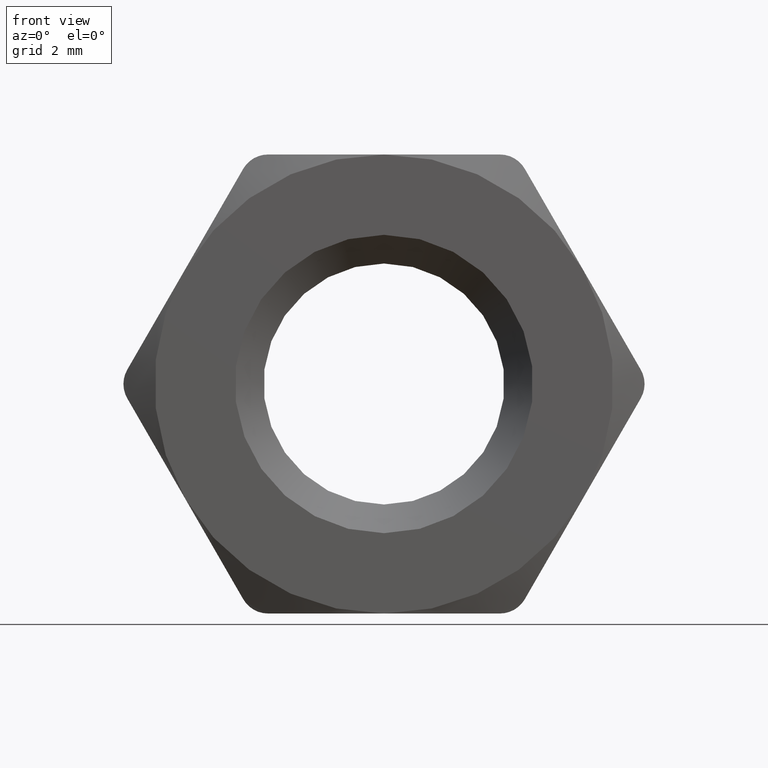
[diagram: clean part render]
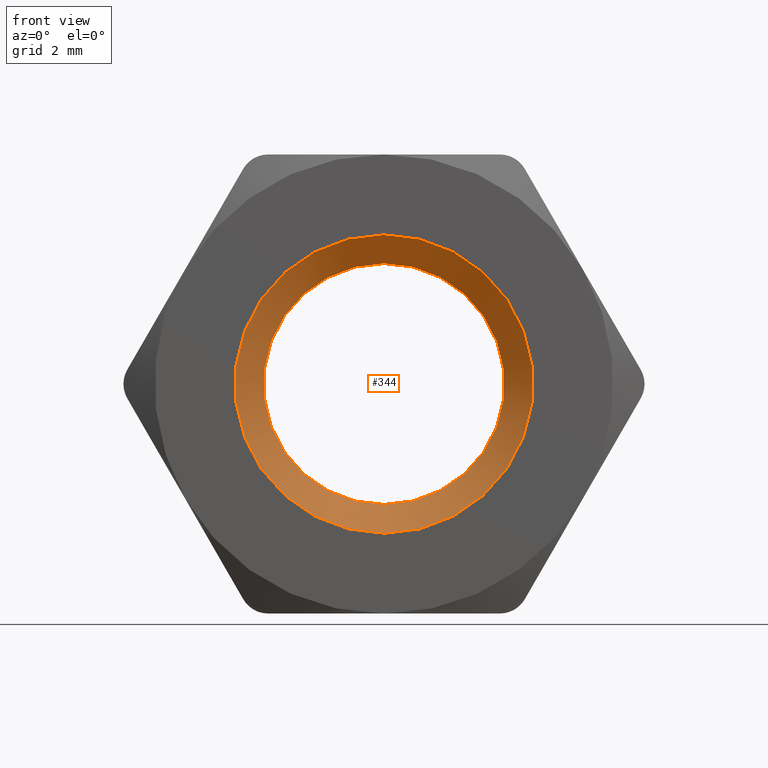
[diagram: same view with one face highlighted and labeled with its STEP entity id]
A machine part, front view. The second image highlights one B-rep face of the part: STEP entity #344.
In plain terms, the highlighted conical surface has half-angle 45 deg.
Its self-contained STEP definition (entity closure, byte-faithful):
#256 = AXIS2_PLACEMENT_3D ( 'NONE', #1918, #1023, #885 ) ;
#344 = ADVANCED_FACE ( 'NONE', ( #1720, #532 ), #1784, .F. ) ;
#430 = AXIS2_PLACEMENT_3D ( 'NONE', #968, #1562, #1867 ) ;
#480 = CIRCLE ( 'NONE', #583, 2.599999999999997400 ) ;
#532 = FACE_OUTER_BOUND ( 'NONE', #619, .T. ) ;
#581 = DIRECTION ( 'NONE',  ( 0.0000000000000000000, 0.0000000000000000000, 1.000000000000000000 ) ) ;
#583 = AXIS2_PLACEMENT_3D ( 'NONE', #1474, #1170, #581 ) ;
#619 = EDGE_LOOP ( 'NONE', ( #1581 ) ) ;
#736 = VERTEX_POINT ( 'NONE', #909 ) ;
#829 = CIRCLE ( 'NONE', #256, 2.099999999999998300 ) ;
#885 = DIRECTION ( 'NONE',  ( 0.0000000000000000000, 0.0000000000000000000, 1.000000000000000000 ) ) ;
#909 = CARTESIAN_POINT ( 'NONE',  ( 0.0000000000000000000, -2.000000000000000000, 2.599999999999997400 ) ) ;
#968 = CARTESIAN_POINT ( 'NONE',  ( 0.0000000000000000000, -2.000000000000000000, 0.0000000000000000000 ) ) ;
#1023 = DIRECTION ( 'NONE',  ( -0.0000000000000000000, -1.000000000000000000, -0.0000000000000000000 ) ) ;
#1170 = DIRECTION ( 'NONE',  ( 0.0000000000000000000, 1.000000000000000000, 0.0000000000000000000 ) ) ;
#1202 = ORIENTED_EDGE ( 'NONE', *, *, #1709, .F. ) ;
#1293 = EDGE_LOOP ( 'NONE', ( #1202 ) ) ;
#1474 = CARTESIAN_POINT ( 'NONE',  ( 0.0000000000000000000, -2.000000000000000000, 0.0000000000000000000 ) ) ;
#1562 = DIRECTION ( 'NONE',  ( -0.0000000000000000000, -1.000000000000000000, -0.0000000000000000000 ) ) ;
#1581 = ORIENTED_EDGE ( 'NONE', *, *, #1846, .F. ) ;
#1661 = CARTESIAN_POINT ( 'NONE',  ( 0.0000000000000000000, -1.499999999999998700, 2.099999999999998300 ) ) ;
#1709 = EDGE_CURVE ( 'NONE', #1927, #1927, #829, .T. ) ;
#1720 = FACE_BOUND ( 'NONE', #1293, .T. ) ;
#1784 = CONICAL_SURFACE ( 'NONE', #430, 2.599999999999997400, 0.7853981633974461700 ) ;
#1846 = EDGE_CURVE ( 'NONE', #736, #736, #480, .T. ) ;
#1867 = DIRECTION ( 'NONE',  ( 0.0000000000000000000, 0.0000000000000000000, -1.000000000000000000 ) ) ;
#1918 = CARTESIAN_POINT ( 'NONE',  ( 0.0000000000000000000, -1.499999999999998700, 0.0000000000000000000 ) ) ;
#1927 = VERTEX_POINT ( 'NONE', #1661 ) ;